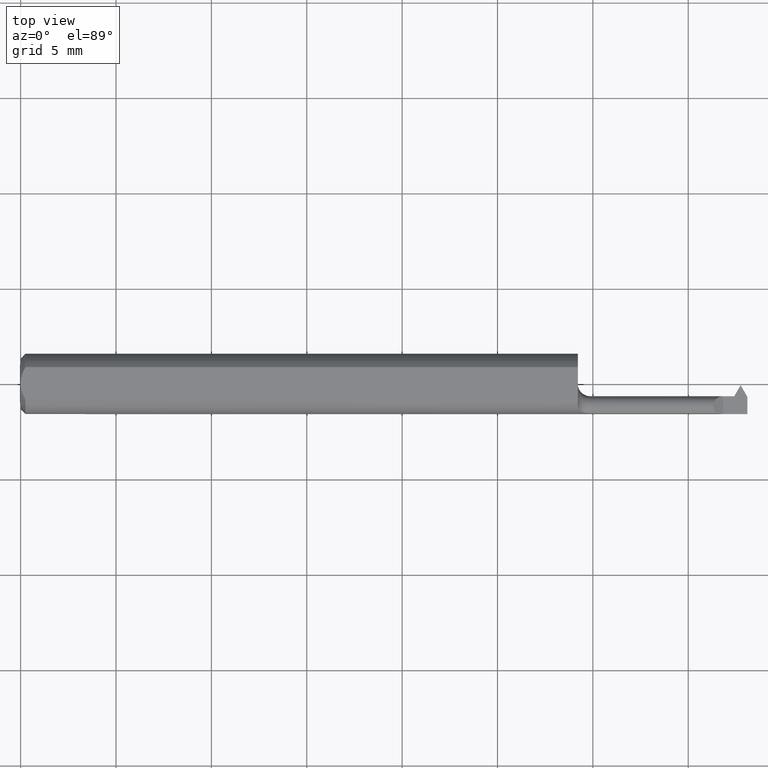
[diagram: clean part render]
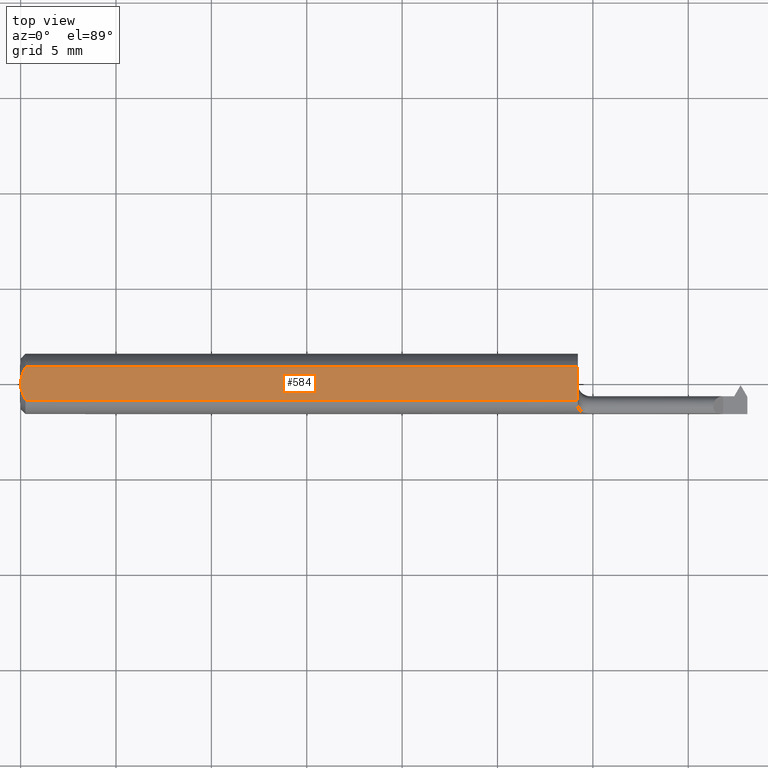
[diagram: same view with one face highlighted and labeled with its STEP entity id]
A machine part, top view. The second image highlights one B-rep face of the part: STEP entity #584.
In plain terms, the highlighted planar face has unit normal (0, 0, 1).
Its self-contained STEP definition (entity closure, byte-faithful):
#12 = ORIENTED_EDGE ( 'NONE', *, *, #600, .F. ) ;
#45 = DIRECTION ( 'NONE',  ( 1.000000000000000000, 0.000000000000000000, -0.000000000000000000 ) ) ;
#55 = ORIENTED_EDGE ( 'NONE', *, *, #609, .T. ) ;
#94 = DIRECTION ( 'NONE',  ( 1.000000000000000000, 0.000000000000000000, 0.000000000000000000 ) ) ;
#99 = CARTESIAN_POINT ( 'NONE',  ( 0.007163450771350382031, -0.02864528976618618133, 0.05234999999999997294 ) ) ;
#102 = LINE ( 'NONE', #655, #643 ) ;
#120 = EDGE_CURVE ( 'NONE', #393, #125, #102, .T. ) ;
#125 = VERTEX_POINT ( 'NONE', #332 ) ;
#138 = VECTOR ( 'NONE', #274, 39.37007874015748143 ) ;
#155 = PLANE ( 'NONE',  #530 ) ;
#194 = EDGE_LOOP ( 'NONE', ( #412, #55, #444, #594, #12 ) ) ;
#203 = CARTESIAN_POINT ( 'NONE',  ( 0.009999999999999887451, 0.03386738844375224849, 0.05234999999999997294 ) ) ;
#208 = CARTESIAN_POINT ( 'NONE',  ( 0.000000000000000000, 0.03386738844375224849, 0.05234999999999997294 ) ) ;
#216 = DIRECTION ( 'NONE',  ( 0.000000000000000000, 0.000000000000000000, 1.000000000000000000 ) ) ;
#222 = CARTESIAN_POINT ( 'NONE',  ( 0.000000000000000000, 0.000000000000000000, 0.05234999999999997294 ) ) ;
#223 = VERTEX_POINT ( 'NONE', #222 ) ;
#245 = CARTESIAN_POINT ( 'NONE',  ( 0.009999999999999887451, 0.03386738844375224849, 0.05234999999999997294 ) ) ;
#252 = CARTESIAN_POINT ( 'NONE',  ( 0.001063697276021325104, 0.01189177144351695990, 0.05234999999999997988 ) ) ;
#261 = CARTESIAN_POINT ( 'NONE',  ( 1.150000000000000355, 0.06234999999999999570, 0.05234999999999997294 ) ) ;
#274 = DIRECTION ( 'NONE',  ( -1.000000000000000000, -0.000000000000000000, -0.000000000000000000 ) ) ;
#278 = LINE ( 'NONE', #261, #667 ) ;
#332 = CARTESIAN_POINT ( 'NONE',  ( 1.150000000000000355, -0.03386738844375224849, 0.05234999999999997294 ) ) ;
#377 = CARTESIAN_POINT ( 'NONE',  ( 0.009999999999999887451, -0.03386738844375224849, 0.05234999999999997294 ) ) ;
#387 = LINE ( 'NONE', #208, #138 ) ;
#393 = VERTEX_POINT ( 'NONE', #569 ) ;
#412 = ORIENTED_EDGE ( 'NONE', *, *, #120, .T. ) ;
#434 = VERTEX_POINT ( 'NONE', #245 ) ;
#444 = ORIENTED_EDGE ( 'NONE', *, *, #558, .T. ) ;
#466 = CARTESIAN_POINT ( 'NONE',  ( 0.004671770759546750584, 0.02323517832780109052, 0.05234999999999998682 ) ) ;
#486 = FACE_OUTER_BOUND ( 'NONE', #194, .T. ) ;
#507 = B_SPLINE_CURVE_WITH_KNOTS ( 'NONE', 3,
 ( #577, #526, #252, #466, #692, #203 ),
 .UNSPECIFIED., .F., .F.,
 ( 4, 2, 4 ),
 ( 0.003093386807937206339, 0.003544501666246027347, 0.003995616524554848788 ),
 .UNSPECIFIED. ) ;
#526 = CARTESIAN_POINT ( 'NONE',  ( -1.133440131013889109E-15, 0.005954997531774002505, 0.05234999999999997294 ) ) ;
#530 = AXIS2_PLACEMENT_3D ( 'NONE', #596, #216, #45 ) ;
#532 = B_SPLINE_CURVE_WITH_KNOTS ( 'NONE', 3,
 ( #377, #99, #603, #709, #550, #642 ),
 .UNSPECIFIED., .F., .F.,
 ( 4, 2, 4 ),
 ( 0.002189598257423874383, 0.002641492532680540361, 0.003093386807937206339 ),
 .UNSPECIFIED. ) ;
#550 = CARTESIAN_POINT ( 'NONE',  ( -1.104610997828796865E-15, -0.005965286321680308458, 0.05234999999999996600 ) ) ;
#558 = EDGE_CURVE ( 'NONE', #652, #434, #387, .T. ) ;
#569 = CARTESIAN_POINT ( 'NONE',  ( 0.009999999999999887451, -0.03386738844375224849, 0.05234999999999997294 ) ) ;
#577 = CARTESIAN_POINT ( 'NONE',  ( 0.000000000000000000, 0.000000000000000000, 0.05234999999999997294 ) ) ;
#584 = ADVANCED_FACE ( 'NONE', ( #486 ), #155, .T. ) ;
#594 = ORIENTED_EDGE ( 'NONE', *, *, #695, .F. ) ;
#596 = CARTESIAN_POINT ( 'NONE',  ( 1.630958352158234037, 0.06235000000000000264, 0.05234999999999997294 ) ) ;
#600 = EDGE_CURVE ( 'NONE', #393, #223, #532, .T. ) ;
#603 = CARTESIAN_POINT ( 'NONE',  ( 0.004679365186780987812, -0.02325953974079660730, 0.05234999999999997988 ) ) ;
#609 = EDGE_CURVE ( 'NONE', #125, #652, #278, .T. ) ;
#642 = CARTESIAN_POINT ( 'NONE',  ( 0.000000000000000000, 0.000000000000000000, 0.05234999999999997294 ) ) ;
#643 = VECTOR ( 'NONE', #94, 39.37007874015748143 ) ;
#650 = CARTESIAN_POINT ( 'NONE',  ( 1.150000000000000355, 0.03386738844375224849, 0.05234999999999997294 ) ) ;
#652 = VERTEX_POINT ( 'NONE', #650 ) ;
#655 = CARTESIAN_POINT ( 'NONE',  ( 0.000000000000000000, -0.03386738844375224849, 0.05234999999999997294 ) ) ;
#667 = VECTOR ( 'NONE', #706, 39.37007874015748143 ) ;
#692 = CARTESIAN_POINT ( 'NONE',  ( 0.007185421074056196067, 0.02868573718286566293, 0.05234999999999997294 ) ) ;
#695 = EDGE_CURVE ( 'NONE', #223, #434, #507, .T. ) ;
#706 = DIRECTION ( 'NONE',  ( -2.651650034397991252E-17, 1.000000000000000000, 0.000000000000000000 ) ) ;
#709 = CARTESIAN_POINT ( 'NONE',  ( 0.001055043921632921322, -0.01186408073210964975, 0.05234999999999997988 ) ) ;